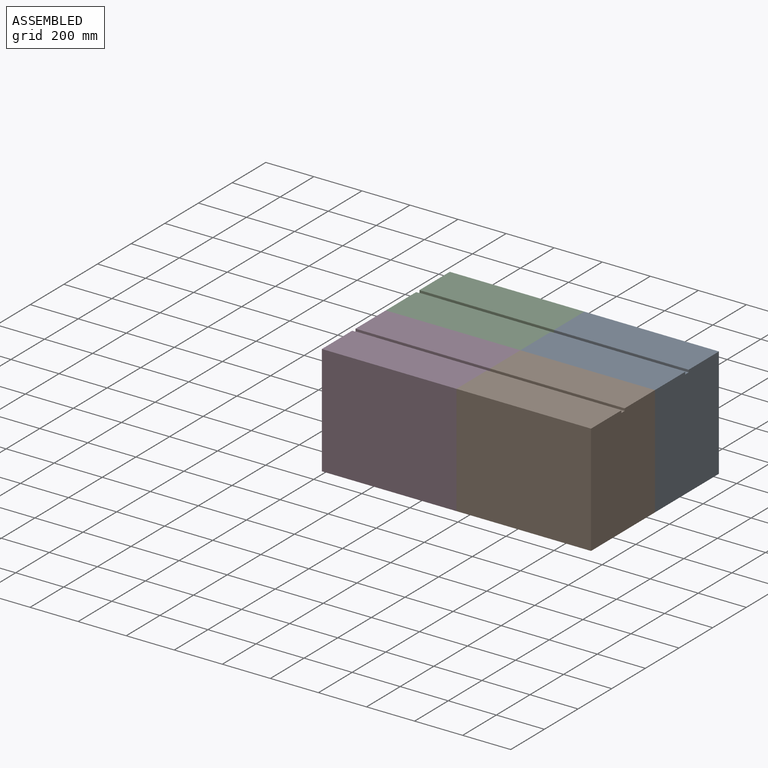
[diagram: assembled view]
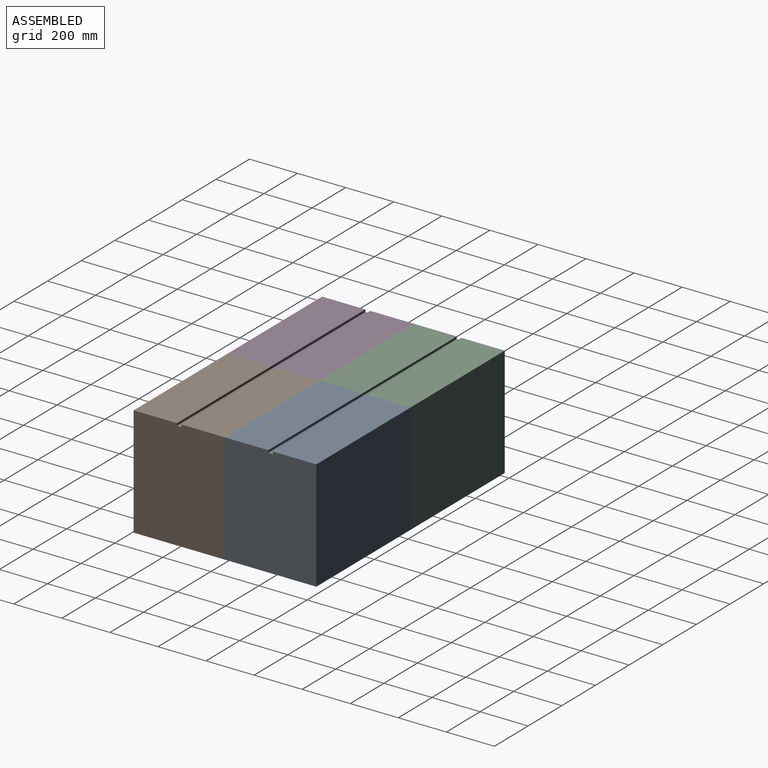
[diagram: assembled view, second angle]
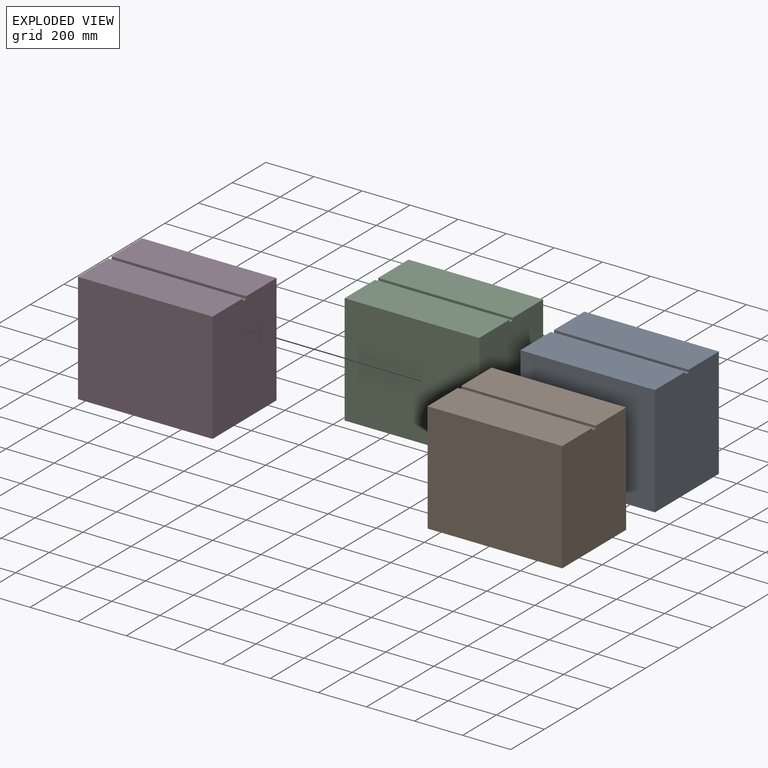
[diagram: exploded view]
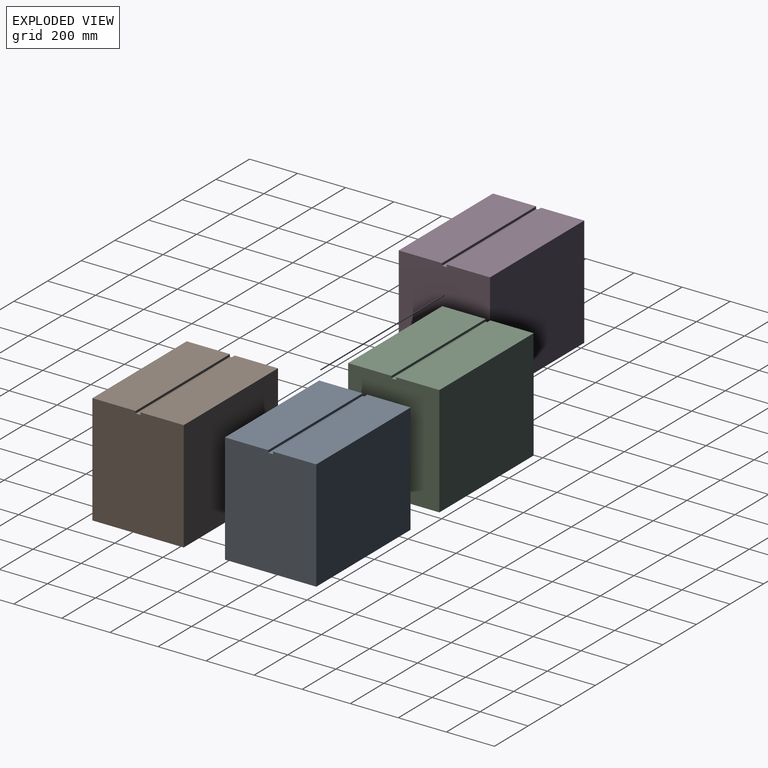
[diagram: exploded view, second angle]
ASSEMBLY  parts=4 mates=3
PART A: 10 faces, bbox 560x380x460 mm
  f0: plane 560x180mm, normal (0,0,1), area 100800mm2, adj f1,f2,f3,f8
  f1: plane 460x380mm, normal (-1,0,0), area 174600mm2, adj f0,f3,f4,f5,f6,f7,f8,f9
  f2: plane 460x380mm, normal (1,0,0), area 174600mm2, adj f0,f3,f4,f5,f6,f7,f8,f9
  f3: plane 560x460mm, normal (0,-1,0), area 257600mm2, adj f0,f1,f2,f4
  f4: plane 560x380mm, normal (0,0,-1), area 212800mm2, adj f1,f2,f3,f5
  f5: plane 560x460mm, normal (0,1,0), area 257600mm2, adj f1,f2,f4,f6
  f6: plane 560x180mm, normal (0,0,1), area 100800mm2, adj f1,f2,f5,f7
  f7: plane 560x10mm, normal (0,-1,0), area 5600mm2, adj f1,f2,f6,f9
  f8: plane 560x10mm, normal (0,1,0), area 5600mm2, adj f0,f1,f2,f9
  f9: plane 560x20mm, normal (0,0,1), area 11200mm2, adj f1,f2,f7,f8
PART B: same geometry as A
PART C: same geometry as A
PART D: same geometry as A
PLACE A t=(732.14,571.77,419.71)mm
PLACE B t=(732.14,191.77,419.71)mm
PLACE C t=(172.14,571.77,419.71)mm
PLACE D t=(172.14,191.77,419.71)mm
MATE fastened D.f2 <-> B.f1  axis (1,0,0) through (172.14,31.16,743.27)mm
MATE fastened A.f3 <-> B.f5  axis (0,-1,0) through (732.14,411.16,743.27)mm
MATE fastened C.f2 <-> A.f1  axis (1,0,0) through (172.14,411.16,743.27)mm
